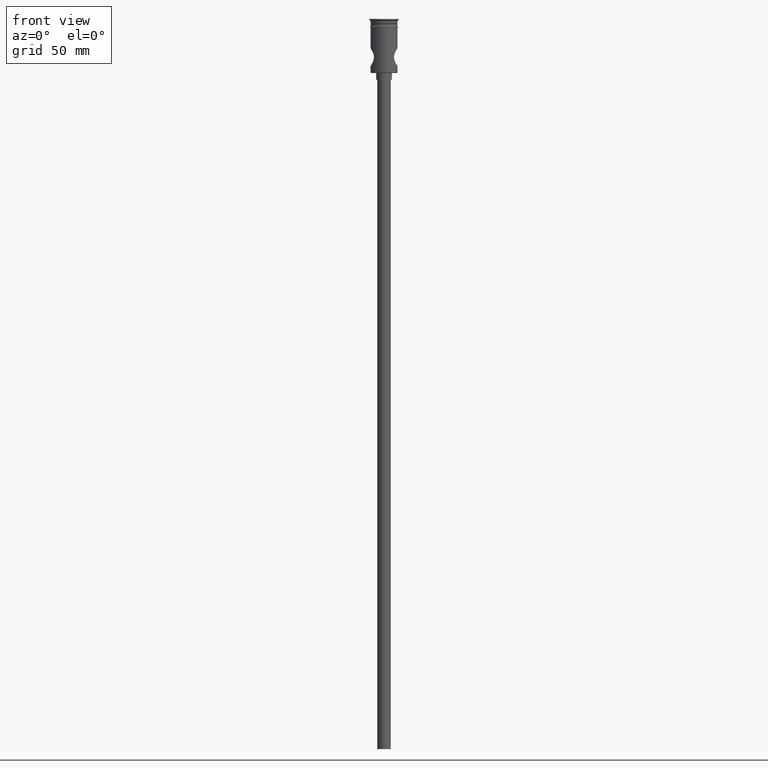
[diagram: clean part render]
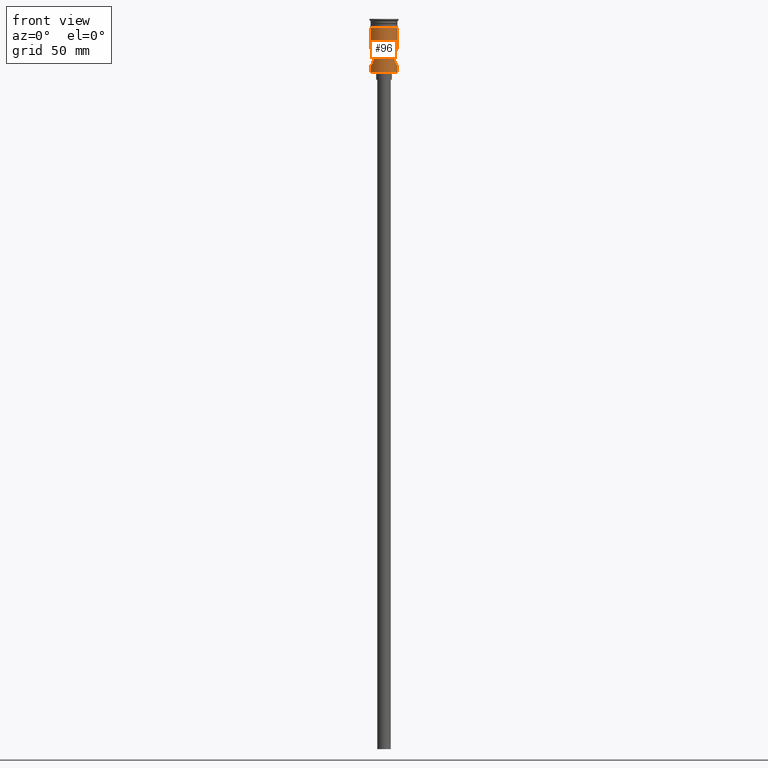
[diagram: same view with one face highlighted and labeled with its STEP entity id]
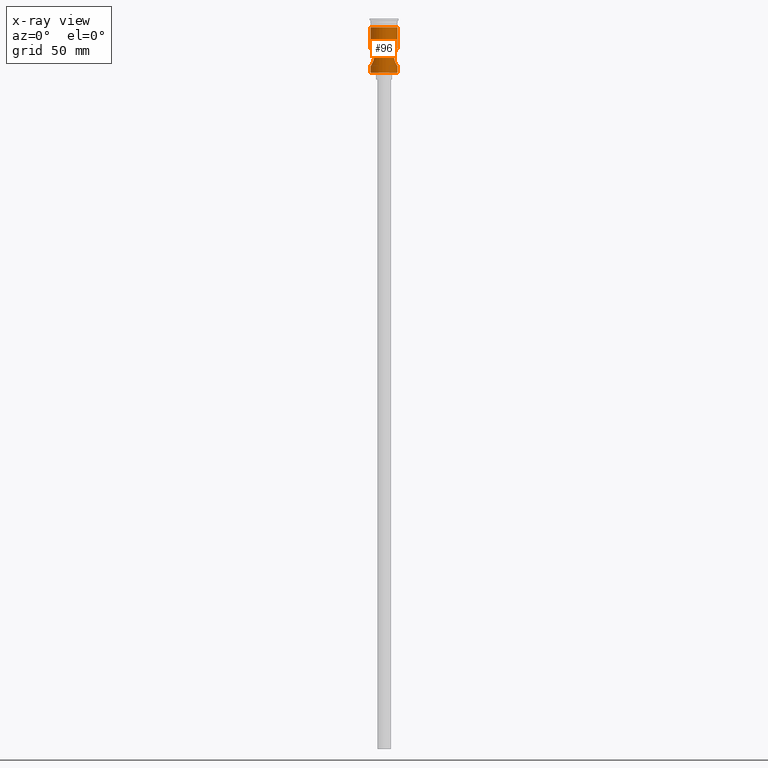
[diagram: x-ray of the same camera — body ghosted, the highlighted face saturated]
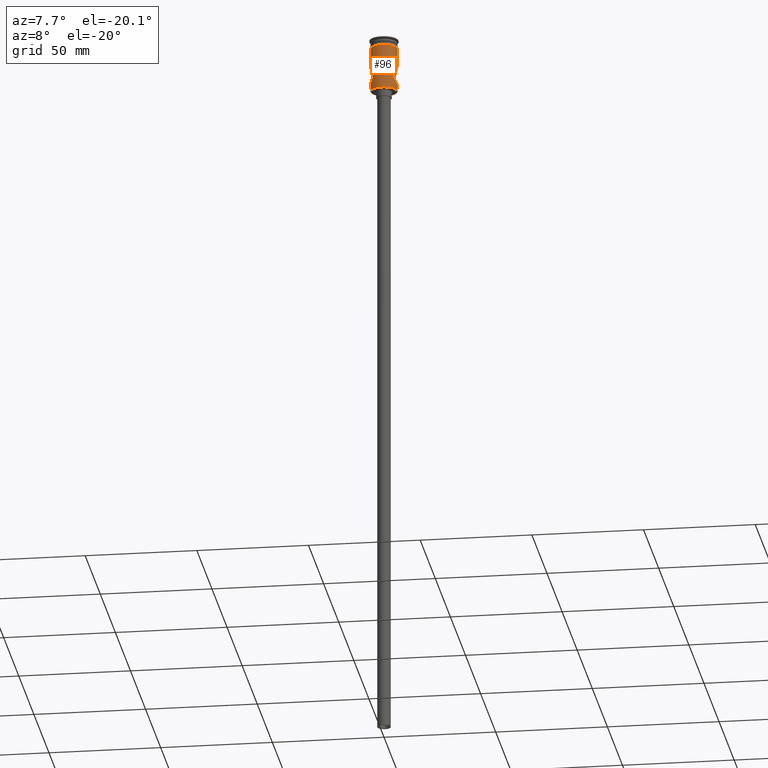
[diagram: same view with one face highlighted and labeled with its STEP entity id]
A machine part, front view. The second image highlights one B-rep face of the part: STEP entity #96.
The next image is the same camera in x-ray: the body ghosted, the highlighted face saturated — about 0% of this face is hidden behind the body in this view.
A second angle (auxiliary view) of the same face is appended — the face is thin or edge-on in the first view.
In plain terms, the highlighted cylindrical surface (edge-blend (fillet) strip) has radius 6 mm, axis along (-0, -0, 1).
Its self-contained STEP definition (entity closure, byte-faithful):
#12 = VECTOR ( 'NONE', #720, 1000.000000000000000 ) ;
#27 = CARTESIAN_POINT ( 'NONE',  ( -5.383657517074644794, -2.656633614838566082, -13.99882376761189384 ) ) ;
#32 = CIRCLE ( 'NONE', #371, 5.999999999999997335 ) ;
#38 = CARTESIAN_POINT ( 'NONE',  ( -4.904334778770657266, -3.460699021627381633, -14.97811247933653789 ) ) ;
#40 = CARTESIAN_POINT ( 'NONE',  ( 4.812980838828969432, -3.584886833645908766, -15.20686804412652116 ) ) ;
#52 = CARTESIAN_POINT ( 'NONE',  ( -4.472242783135714106, -3.999880562432159614, -17.13916142668633213 ) ) ;
#73 = CARTESIAN_POINT ( 'NONE',  ( 4.566410052139550757, -3.892191516930989525, -16.06790164049536429 ) ) ;
#74 = VERTEX_POINT ( 'NONE', #1206 ) ;
#96 = ADVANCED_FACE ( 'NONE', ( #430 ), #983, .T. ) ;
#97 = DIRECTION ( 'NONE',  ( -0.000000000000000000, -0.000000000000000000, 1.000000000000000000 ) ) ;
#103 = CARTESIAN_POINT ( 'NONE',  ( -5.999999999999997335, 7.347880794884116778E-16, 0.000000000000000000 ) ) ;
#169 = DIRECTION ( 'NONE',  ( -0.000000000000000000, -0.000000000000000000, 1.000000000000000000 ) ) ;
#189 = CARTESIAN_POINT ( 'NONE',  ( 5.094941177298610846, -3.173493986384484877, -19.44836001449218799 ) ) ;
#192 = EDGE_CURVE ( 'NONE', #383, #832, #32, .T. ) ;
#242 = CARTESIAN_POINT ( 'NONE',  ( -5.999999999999997335, 0.000000000000000000, -21.00000000000000000 ) ) ;
#256 = ORIENTED_EDGE ( 'NONE', *, *, #280, .F. ) ;
#258 = VECTOR ( 'NONE', #902, 1000.000000000000000 ) ;
#280 = EDGE_CURVE ( 'NONE', #1169, #545, #1426, .T. ) ;
#282 = CARTESIAN_POINT ( 'NONE',  ( -5.999999999999997335, -0.1348394930680405501, -13.00000000000000355 ) ) ;
#298 = CARTESIAN_POINT ( 'NONE',  ( 4.472303672293368670, -3.999812486286545177, -17.27597643780235970 ) ) ;
#324 = CARTESIAN_POINT ( 'NONE',  ( 5.999999999999997335, 1.032865049536733409E-19, -13.00000000000000178 ) ) ;
#335 = CARTESIAN_POINT ( 'NONE',  ( 6.000000000000000000, 0.000000000000000000, -3.799999999999998490 ) ) ;
#344 = CARTESIAN_POINT ( 'NONE',  ( 5.909894408226809226, -1.069461442341119284, -13.13625666965422312 ) ) ;
#347 = AXIS2_PLACEMENT_3D ( 'NONE', #652, #1439, #899 ) ;
#355 = CARTESIAN_POINT ( 'NONE',  ( 5.476104105474130179, -2.462661959051751115, -13.83753213007001825 ) ) ;
#369 = CARTESIAN_POINT ( 'NONE',  ( -5.726993910597676596, -1.806673378235915894, -20.57837121075087694 ) ) ;
#370 = CARTESIAN_POINT ( 'NONE',  ( 5.999999999999997335, 0.000000000000000000, 0.000000000000000000 ) ) ;
#371 = AXIS2_PLACEMENT_3D ( 'NONE', #474, #572, #687 ) ;
#372 = ORIENTED_EDGE ( 'NONE', *, *, #1466, .T. ) ;
#378 = CARTESIAN_POINT ( 'NONE',  ( -5.963516332756119809, -0.6739983983561910197, -13.05488329690675897 ) ) ;
#381 = CARTESIAN_POINT ( 'NONE',  ( 5.857856019569841699, -1.322596816769211481, -13.21570480751898025 ) ) ;
#383 = VERTEX_POINT ( 'NONE', #776 ) ;
#392 = CARTESIAN_POINT ( 'NONE',  ( -4.591041808995889539, -3.863597314276565164, -18.06934695620069320 ) ) ;
#403 = CARTESIAN_POINT ( 'NONE',  ( -4.813287987224463826, -3.584502662014732888, -15.20585560854699025 ) ) ;
#405 = CARTESIAN_POINT ( 'NONE',  ( 5.856852607584091430, -1.326405963621355211, -20.78272040109924745 ) ) ;
#408 = CARTESIAN_POINT ( 'NONE',  ( -5.092532074683506771, -3.177271535275487224, -14.55676189133447807 ) ) ;
#430 = FACE_OUTER_BOUND ( 'NONE', #885, .T. ) ;
#432 = VERTEX_POINT ( 'NONE', #324 ) ;
#443 = AXIS2_PLACEMENT_3D ( 'NONE', #738, #169, #960 ) ;
#462 = CARTESIAN_POINT ( 'NONE',  ( 5.726042320256659046, -1.810021776766354673, -13.42313354859388497 ) ) ;
#464 = CARTESIAN_POINT ( 'NONE',  ( -5.981377723958397397, -0.5413430384848010313, -20.97221760090189235 ) ) ;
#474 = CARTESIAN_POINT ( 'NONE',  ( 0.000000000000000000, 0.000000000000000000, -23.80000000000003624 ) ) ;
#487 = CARTESIAN_POINT ( 'NONE',  ( -4.815777407978871771, -3.581151401136684953, -18.80060207983888887 ) ) ;
#497 = CARTESIAN_POINT ( 'NONE',  ( -5.476434227958207224, -2.461837270032277036, -13.83697842493743124 ) ) ;
#503 = CARTESIAN_POINT ( 'NONE',  ( -5.726539468168462044, -1.808257897405587622, -13.42234802356430201 ) ) ;
#507 = CARTESIAN_POINT ( 'NONE',  ( 4.496976719000949529, -3.972684566356398328, -16.46183091757619721 ) ) ;
#519 = CARTESIAN_POINT ( 'NONE',  ( -5.999999999999997335, 7.346847929928983029E-16, -13.00000000000000178 ) ) ;
#528 = CARTESIAN_POINT ( 'NONE',  ( 4.590872927876619158, -3.863799755992654461, -18.06881075205812692 ) ) ;
#545 = VERTEX_POINT ( 'NONE', #1232 ) ;
#568 = LINE ( 'NONE', #103, #1090 ) ;
#572 = DIRECTION ( 'NONE',  ( -0.000000000000000000, -0.000000000000000000, 1.000000000000000000 ) ) ;
#579 = CARTESIAN_POINT ( 'NONE',  ( -5.999999999999997335, -0.2736934833754732788, -20.99999999999999645 ) ) ;
#601 = LINE ( 'NONE', #370, #12 ) ;
#612 = CARTESIAN_POINT ( 'NONE',  ( 5.478456530086701193, -2.457412205291197083, -20.16652278763330486 ) ) ;
#631 = CARTESIAN_POINT ( 'NONE',  ( -5.191849950367998012, -3.014242200430727436, -19.64164800058794214 ) ) ;
#640 = CARTESIAN_POINT ( 'NONE',  ( 5.999999999999997335, 0.000000000000000000, -23.80000000000003624 ) ) ;
#646 = CARTESIAN_POINT ( 'NONE',  ( 5.999999999999997335, -0.2733318867810513031, -21.00000000000000355 ) ) ;
#648 = EDGE_CURVE ( 'NONE', #383, #1169, #936, .T. ) ;
#652 = CARTESIAN_POINT ( 'NONE',  ( 0.000000000000000000, 0.000000000000000000, 0.000000000000000000 ) ) ;
#679 = CARTESIAN_POINT ( 'NONE',  ( -5.476259375248749173, -2.462490082215232690, -20.16276605017704782 ) ) ;
#687 = DIRECTION ( 'NONE',  ( -1.000000000000000000, 0.000000000000000000, 0.000000000000000000 ) ) ;
#714 = ORIENTED_EDGE ( 'NONE', *, *, #192, .T. ) ;
#719 = CARTESIAN_POINT ( 'NONE',  ( -4.904969006695425016, -3.459781783056855797, -19.02337662573054899 ) ) ;
#720 = DIRECTION ( 'NONE',  ( -0.000000000000000000, -0.000000000000000000, 1.000000000000000000 ) ) ;
#731 = CARTESIAN_POINT ( 'NONE',  ( -4.478683235531862650, -3.992711086781060015, -17.27669624262845005 ) ) ;
#733 = CARTESIAN_POINT ( 'NONE',  ( 5.192588128681415505, -3.012973207551336685, -19.64309212195294307 ) ) ;
#738 = CARTESIAN_POINT ( 'NONE',  ( 0.000000000000000000, 0.000000000000000000, -3.799999999999998490 ) ) ;
#743 = CARTESIAN_POINT ( 'NONE',  ( 5.999999999999997335, 0.000000000000000000, -21.00000000000000355 ) ) ;
#749 = CARTESIAN_POINT ( 'NONE',  ( 4.594981970458709597, -3.858589710197852796, -15.93762721160692841 ) ) ;
#756 = CARTESIAN_POINT ( 'NONE',  ( 4.903670365680997456, -3.461664301119387943, -14.97966456857568751 ) ) ;
#757 = B_SPLINE_CURVE_WITH_KNOTS ( 'NONE', 3,
 ( #1022, #1393, #1478, #344, #381, #462, #1367, #355, #811, #1284, #957, #756, #40, #1176, #851, #749, #73, #507, #1406, #298, #860, #528, #984, #843, #1199, #189, #733, #866, #612, #1096, #1299, #405, #1190, #1314, #646, #950 ),
 .UNSPECIFIED., .F., .F.,
 ( 4, 2, 2, 2, 2, 2, 2, 2, 2, 2, 2, 2, 2, 2, 2, 2, 2, 4 ),
 ( 0.01292789089967558841, 0.01373481658167572013, 0.01454174226367585185, 0.01534866794567598357, 0.01615559362767611529, 0.01696251930967624874, 0.01776944499167637873, 0.01817290783267644372, 0.01857637067367650524, 0.01938329635567663523, 0.02019022203767676174, 0.02099714771967688826, 0.02180407340167701824, 0.02261099908367714129, 0.02341792476567727127, 0.02422485044767740126, 0.02503177612967752430, 0.02583870181167765429 ),
 .UNSPECIFIED. ) ;
#759 = CIRCLE ( 'NONE', #443, 6.000000000000000000 ) ;
#768 = EDGE_CURVE ( 'NONE', #74, #1315, #759, .T. ) ;
#776 = CARTESIAN_POINT ( 'NONE',  ( -5.999999999999997335, 7.347880794884116778E-16, -23.80000000000003624 ) ) ;
#811 = CARTESIAN_POINT ( 'NONE',  ( 5.381440153112923674, -2.661027735845788555, -14.00283269631730754 ) ) ;
#824 = CARTESIAN_POINT ( 'NONE',  ( -5.999999999999997335, 7.347880794884116778E-16, 0.000000000000000000 ) ) ;
#825 = CARTESIAN_POINT ( 'NONE',  ( -5.649252793255032934, -2.034506580944978271, -20.45365450866940193 ) ) ;
#832 = VERTEX_POINT ( 'NONE', #640 ) ;
#834 = CARTESIAN_POINT ( 'NONE',  ( -4.503329929757906136, -3.964891535778144682, -17.54583673630848040 ) ) ;
#843 = CARTESIAN_POINT ( 'NONE',  ( 4.815345988703962909, -3.581725270876520373, -18.79943117160749466 ) ) ;
#848 = CARTESIAN_POINT ( 'NONE',  ( -5.977293684551374220, -0.5386543696670904602, -13.03412758888619116 ) ) ;
#851 = CARTESIAN_POINT ( 'NONE',  ( 4.659573210257435427, -3.780337466250410561, -15.68607491293215084 ) ) ;
#860 = CARTESIAN_POINT ( 'NONE',  ( 4.497954016143989264, -3.971583117973676025, -17.54574033674490607 ) ) ;
#861 = ORIENTED_EDGE ( 'NONE', *, *, #924, .F. ) ;
#863 = CARTESIAN_POINT ( 'NONE',  ( -5.995459719443723579, -0.2695386314927114557, -13.00680060135632665 ) ) ;
#866 = CARTESIAN_POINT ( 'NONE',  ( 5.383857059222176389, -2.656136703825480172, -20.00147985586160360 ) ) ;
#885 = EDGE_LOOP ( 'NONE', ( #1450, #714, #1005, #1178, #372, #1268, #861, #256 ) ) ;
#899 = DIRECTION ( 'NONE',  ( 1.000000000000000000, 0.000000000000000000, 0.000000000000000000 ) ) ;
#902 = DIRECTION ( 'NONE',  ( -0.000000000000000000, -0.000000000000000000, 1.000000000000000000 ) ) ;
#924 = EDGE_CURVE ( 'NONE', #545, #74, #568, .T. ) ;
#932 = CARTESIAN_POINT ( 'NONE',  ( -5.910558363407835358, -1.065472474882100284, -20.86475527808674713 ) ) ;
#936 = LINE ( 'NONE', #824, #1386 ) ;
#947 = CARTESIAN_POINT ( 'NONE',  ( -5.647456945233588321, -2.039167636317594123, -13.54932708310013645 ) ) ;
#950 = CARTESIAN_POINT ( 'NONE',  ( 5.999999999999997335, 0.000000000000000000, -21.00000000000000355 ) ) ;
#953 = DIRECTION ( 'NONE',  ( -0.000000000000000000, -0.000000000000000000, 1.000000000000000000 ) ) ;
#954 = CARTESIAN_POINT ( 'NONE',  ( -4.521451790501866519, -3.944329598407791071, -17.67822252913731162 ) ) ;
#957 = CARTESIAN_POINT ( 'NONE',  ( 5.092437400807709125, -3.177449308448083709, -14.55690956341038245 ) ) ;
#960 = DIRECTION ( 'NONE',  ( 1.000000000000000000, 0.000000000000000000, 0.000000000000000000 ) ) ;
#983 = CYLINDRICAL_SURFACE ( 'NONE', #347, 5.999999999999997335 ) ;
#984 = CARTESIAN_POINT ( 'NONE',  ( 4.658564655011906197, -3.783396392401491504, -18.32386562586675538 ) ) ;
#999 = EDGE_CURVE ( 'NONE', #832, #1101, #1358, .T. ) ;
#1005 = ORIENTED_EDGE ( 'NONE', *, *, #999, .T. ) ;
#1022 = CARTESIAN_POINT ( 'NONE',  ( 5.999999999999997335, 1.032865049536733409E-19, -13.00000000000000178 ) ) ;
#1054 = CARTESIAN_POINT ( 'NONE',  ( -4.658800709564933307, -3.783111596241941932, -18.32471878455887548 ) ) ;
#1061 = EDGE_CURVE ( 'NONE', #432, #1101, #757, .T. ) ;
#1070 = CARTESIAN_POINT ( 'NONE',  ( -4.655957912614353766, -3.786615440986035086, -15.68502588106870199 ) ) ;
#1074 = CARTESIAN_POINT ( 'NONE',  ( -5.999999999999997335, 0.000000000000000000, -21.00000000000000000 ) ) ;
#1084 = CARTESIAN_POINT ( 'NONE',  ( -5.191140967328530920, -3.015547360259485998, -14.35969034782403853 ) ) ;
#1090 = VECTOR ( 'NONE', #97, 1000.000000000000000 ) ;
#1096 = CARTESIAN_POINT ( 'NONE',  ( 5.649709804834208704, -2.033012498713171468, -20.45435978024744017 ) ) ;
#1101 = VERTEX_POINT ( 'NONE', #743 ) ;
#1122 = CARTESIAN_POINT ( 'NONE',  ( -5.383168773068585544, -2.657528158016941422, -20.00025070472698729 ) ) ;
#1160 = CARTESIAN_POINT ( 'NONE',  ( -5.092719808373196599, -3.176950723007532229, -19.44358897106424067 ) ) ;
#1169 = VERTEX_POINT ( 'NONE', #1074 ) ;
#1176 = CARTESIAN_POINT ( 'NONE',  ( 4.695721265758812102, -3.735538961856250673, -15.56388279734573210 ) ) ;
#1178 = ORIENTED_EDGE ( 'NONE', *, *, #1061, .F. ) ;
#1187 = CARTESIAN_POINT ( 'NONE',  ( -5.909734172871756286, -1.070628588321905106, -13.13649990372544707 ) ) ;
#1190 = CARTESIAN_POINT ( 'NONE',  ( 5.910224399078535917, -1.067455424808947173, -20.86424616908553276 ) ) ;
#1199 = CARTESIAN_POINT ( 'NONE',  ( 4.905092851350609351, -3.459704293921745055, -19.02385203036241634 ) ) ;
#1206 = CARTESIAN_POINT ( 'NONE',  ( -6.000000000000000000, 7.347880794884119736E-16, -3.799999999999998490 ) ) ;
#1232 = CARTESIAN_POINT ( 'NONE',  ( -5.999999999999997335, 7.346847929928983029E-16, -13.00000000000000178 ) ) ;
#1268 = ORIENTED_EDGE ( 'NONE', *, *, #768, .F. ) ;
#1281 = CARTESIAN_POINT ( 'NONE',  ( -4.496571596818669470, -3.973146032982571185, -16.46466415118837645 ) ) ;
#1284 = CARTESIAN_POINT ( 'NONE',  ( 5.189877563605831412, -3.017637752822130981, -14.36220871751616279 ) ) ;
#1296 = CARTESIAN_POINT ( 'NONE',  ( -4.589371484154255221, -3.865580797907776311, -15.93709879797099838 ) ) ;
#1299 = CARTESIAN_POINT ( 'NONE',  ( 5.726721313513248646, -1.807412029573764567, -20.57793071042115685 ) ) ;
#1314 = CARTESIAN_POINT ( 'NONE',  ( 5.981315622377779029, -0.5422886287917132453, -20.97212570072115057 ) ) ;
#1315 = VERTEX_POINT ( 'NONE', #335 ) ;
#1358 = LINE ( 'NONE', #1457, #258 ) ;
#1367 = CARTESIAN_POINT ( 'NONE',  ( 5.647852088979878005, -2.038182248857269396, -13.54866401616082072 ) ) ;
#1382 = CARTESIAN_POINT ( 'NONE',  ( -5.857462785930374949, -1.323879775164644057, -20.78366906037869910 ) ) ;
#1386 = VECTOR ( 'NONE', #953, 1000.000000000000000 ) ;
#1393 = CARTESIAN_POINT ( 'NONE',  ( 5.999999999999997335, -0.2693226933892790553, -13.00000000000000000 ) ) ;
#1403 = CARTESIAN_POINT ( 'NONE',  ( -5.857601659980625541, -1.323462767520508399, -13.21610827440704661 ) ) ;
#1406 = CARTESIAN_POINT ( 'NONE',  ( 4.471969905858021122, -4.000185648662160531, -16.72948623710961868 ) ) ;
#1412 = CARTESIAN_POINT ( 'NONE',  ( -4.471926352484669742, -4.000234342895624629, -16.73210661165612478 ) ) ;
#1426 = B_SPLINE_CURVE_WITH_KNOTS ( 'NONE', 3,
 ( #242, #579, #464, #932, #1382, #369, #825, #679, #1122, #631, #1160, #719, #487, #1054, #392, #954, #834, #731, #52, #1412, #1281, #1296, #1070, #403, #38, #408, #1084, #27, #497, #947, #503, #1403, #1187, #378, #848, #863, #282, #519 ),
 .UNSPECIFIED., .F., .F.,
 ( 4, 2, 2, 2, 2, 2, 2, 2, 2, 2, 2, 2, 2, 2, 2, 2, 2, 2, 4 ),
 ( 0.000000000000000000, 0.0008079931812297209146, 0.001615986362459441612, 0.002423979543689161985, 0.003231972724918882791, 0.004039965906148603597, 0.004847959087378323970, 0.005655952268608045209, 0.006059948859222905396, 0.006463945449837766449, 0.007271938631067487689, 0.008079931812297208929, 0.008887924993526937975, 0.009695918174756667021, 0.01050391135598639780, 0.01131190453721612511, 0.01211989771844585589, 0.01252389430906072042, 0.01292789089967558668 ),
 .UNSPECIFIED. ) ;
#1439 = DIRECTION ( 'NONE',  ( -0.000000000000000000, -0.000000000000000000, 1.000000000000000000 ) ) ;
#1450 = ORIENTED_EDGE ( 'NONE', *, *, #648, .F. ) ;
#1457 = CARTESIAN_POINT ( 'NONE',  ( 5.999999999999997335, 0.000000000000000000, 0.000000000000000000 ) ) ;
#1466 = EDGE_CURVE ( 'NONE', #432, #1315, #601, .T. ) ;
#1478 = CARTESIAN_POINT ( 'NONE',  ( 5.981295349059708499, -0.5428679769166553370, -13.02790298971887850 ) ) ;